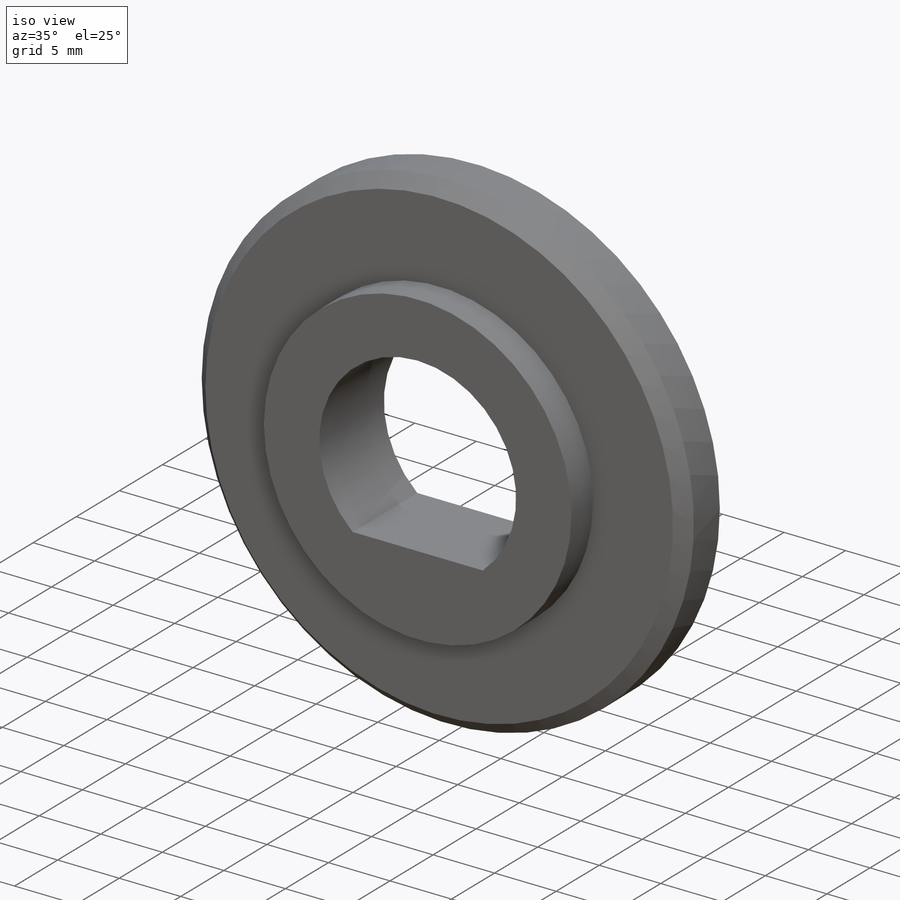
[diagram: iso view]
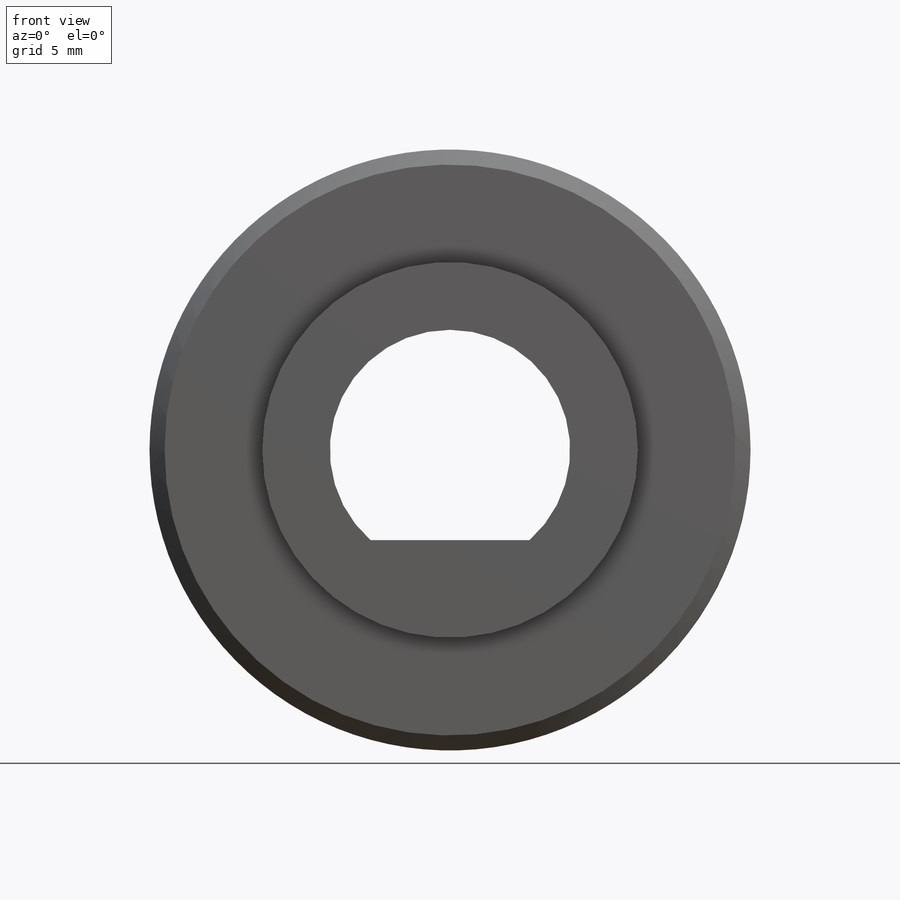
[diagram: front view]
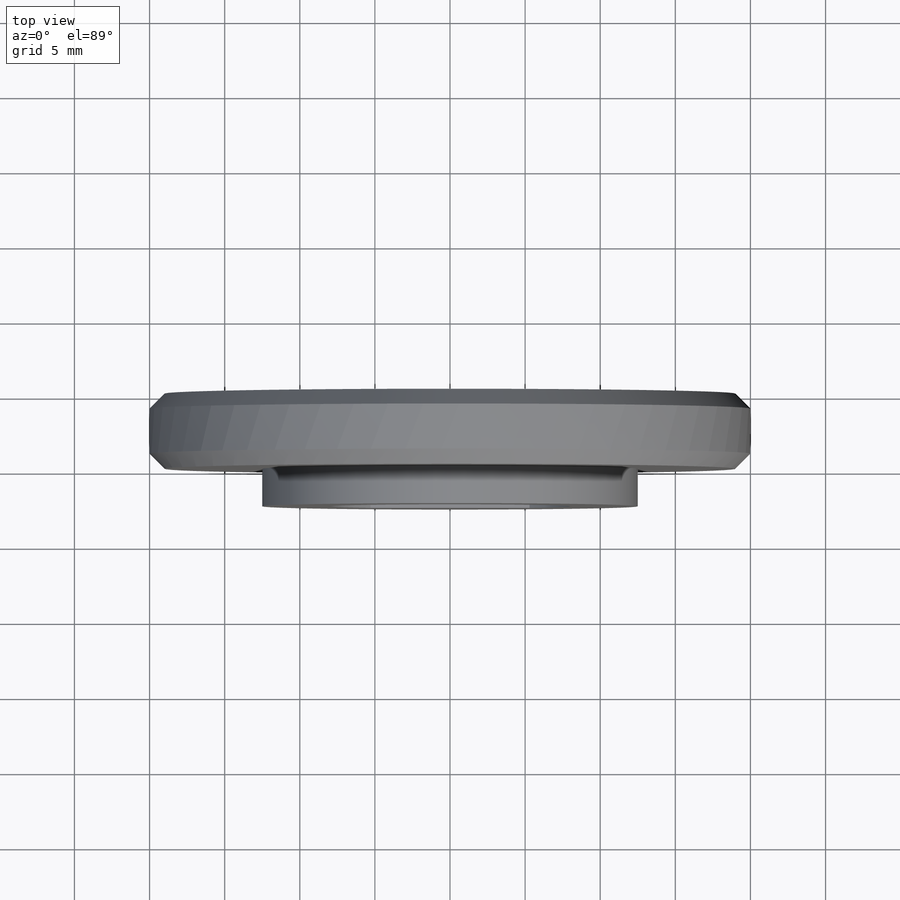
[diagram: top view]
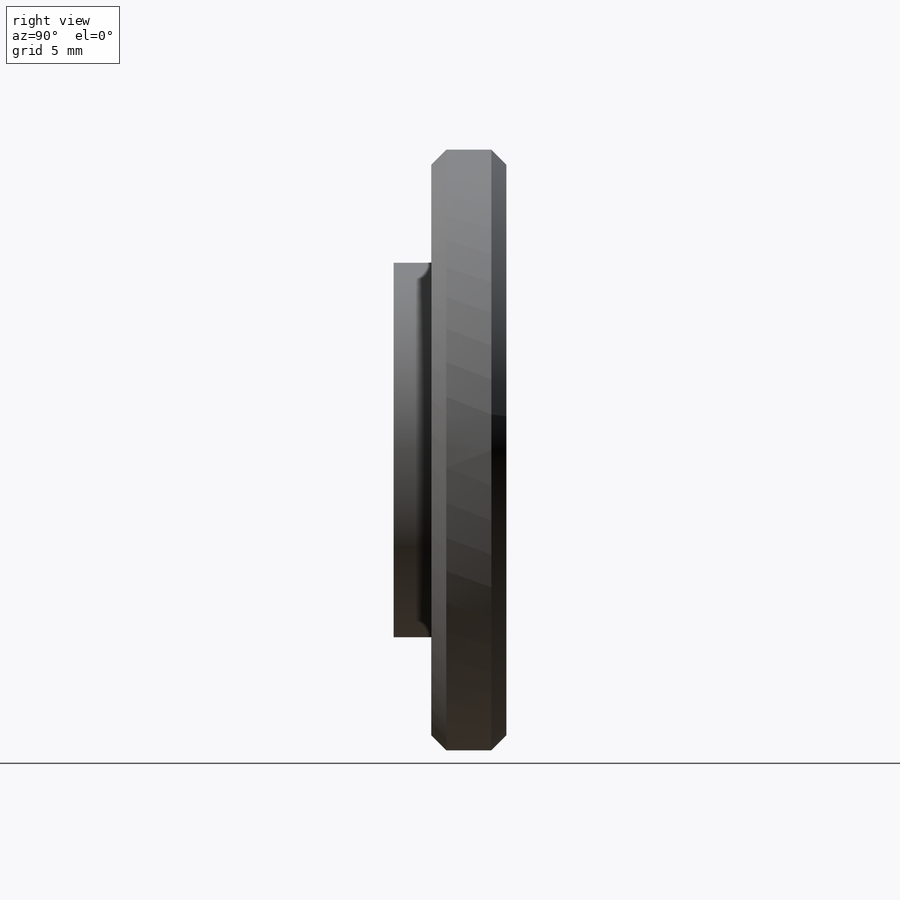
[diagram: right view]
SOLIDWORKS PART (.sldprt)
format: sldprt  version: not decoded by parser v0  size: 178,176 bytes
history: native  units: mm
features: sketch x3, extrude x3, material x1, plane x1, chamfer x1 (+16 scaffold rows collapsed)
feature tree (25):
  scaffold x16  (default folders/planes/origin — collapsed)
  material  "Material <not specified>"
  sketch  "Sketch1"  dims[D1=16.0mm D2=25.0mm]
  extrude  "Boss-Extrude1"  Depth=2.5mm
  plane  "Plane1"  Offset=6mm
  sketch  "Sketch3"  dims[D1=40.0mm]
  extrude  "Boss-Extrude3"  Depth=5mm
  chamfer  "Chamfer2"  Distance=1mm Angle=45deg
  sketch  "Sketch4"  dims[D1=11.0mm D2=5.5mm]
  extrude  "Boss-Extrude4"  Depth=3mm
decode coverage: 7 of 7 modeling features carry decoded parameters
note: suppression state not decoded; provenance and decode notes live in map.json
